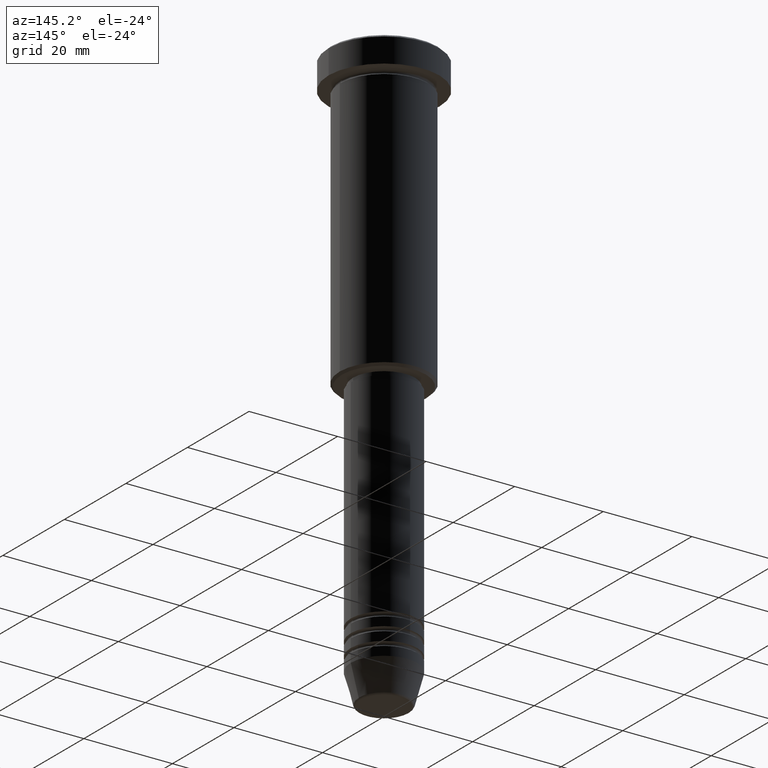
[diagram: clean part render]
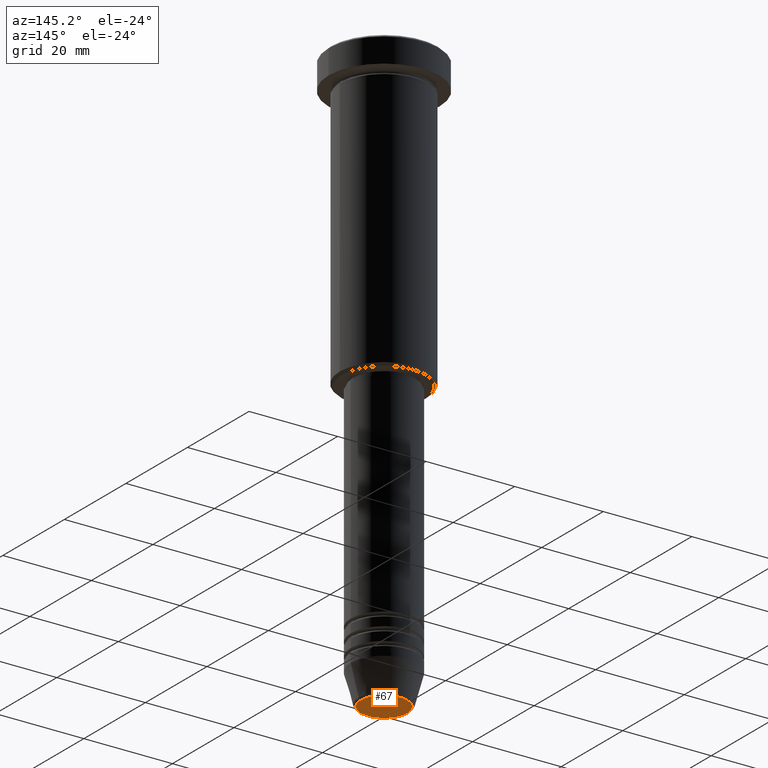
[diagram: same view with one face highlighted and labeled with its STEP entity id]
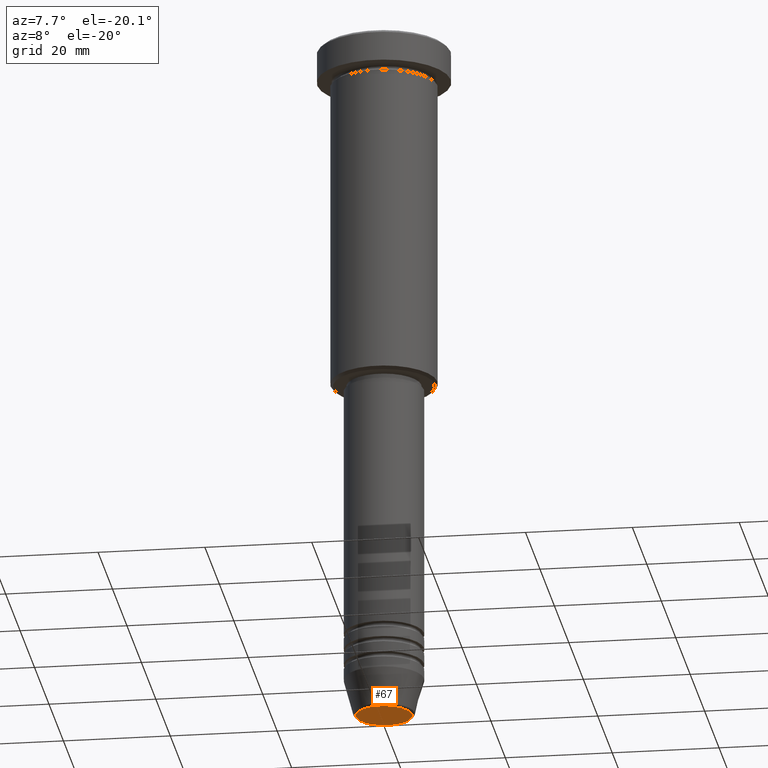
[diagram: same view with one face highlighted and labeled with its STEP entity id]
A machine part, auxiliary view. The second image highlights one B-rep face of the part: STEP entity #67.
A second angle (auxiliary view) of the same face is appended — the face is thin or edge-on in the first view.
In plain terms, the highlighted planar face has unit normal (0, -0, 1).
Its self-contained STEP definition (entity closure, byte-faithful):
#2 = VERTEX_POINT ( 'NONE', #1045 ) ;
#54 = EDGE_LOOP ( 'NONE', ( #235, #1142 ) ) ;
#67 = ADVANCED_FACE ( 'NONE', ( #177 ), #259, .F. ) ;
#143 = AXIS2_PLACEMENT_3D ( 'NONE', #1035, #777, #580 ) ;
#177 = FACE_OUTER_BOUND ( 'NONE', #54, .T. ) ;
#181 = EDGE_CURVE ( 'NONE', #899, #2, #963, .T. ) ;
#192 = CIRCLE ( 'NONE', #908, 5.240692158992654726 ) ;
#235 = ORIENTED_EDGE ( 'NONE', *, *, #181, .T. ) ;
#245 = DIRECTION ( 'NONE',  ( 1.000000000000000000, 0.000000000000000000, 0.000000000000000000 ) ) ;
#259 = PLANE ( 'NONE',  #849 ) ;
#431 = DIRECTION ( 'NONE',  ( 0.000000000000000000, 0.000000000000000000, -1.000000000000000000 ) ) ;
#461 = EDGE_CURVE ( 'NONE', #2, #899, #192, .T. ) ;
#517 = CARTESIAN_POINT ( 'NONE',  ( 5.240692158992654726, 0.000000000000000000, -131.0000000000000000 ) ) ;
#580 = DIRECTION ( 'NONE',  ( 1.000000000000000000, 0.000000000000000000, 0.000000000000000000 ) ) ;
#634 = CARTESIAN_POINT ( 'NONE',  ( 0.000000000000000000, 0.000000000000000000, -131.0000000000000000 ) ) ;
#639 = DIRECTION ( 'NONE',  ( 1.000000000000000000, 0.000000000000000000, 0.000000000000000000 ) ) ;
#727 = DIRECTION ( 'NONE',  ( 0.000000000000000000, -0.000000000000000000, 1.000000000000000000 ) ) ;
#777 = DIRECTION ( 'NONE',  ( 0.000000000000000000, 0.000000000000000000, -1.000000000000000000 ) ) ;
#849 = AXIS2_PLACEMENT_3D ( 'NONE', #634, #727, #639 ) ;
#899 = VERTEX_POINT ( 'NONE', #517 ) ;
#908 = AXIS2_PLACEMENT_3D ( 'NONE', #1076, #431, #245 ) ;
#963 = CIRCLE ( 'NONE', #143, 5.240692158992654726 ) ;
#1035 = CARTESIAN_POINT ( 'NONE',  ( 0.000000000000000000, 0.000000000000000000, -131.0000000000000000 ) ) ;
#1045 = CARTESIAN_POINT ( 'NONE',  ( -5.240692158992654726, 6.713726370671656487E-16, -131.0000000000000000 ) ) ;
#1076 = CARTESIAN_POINT ( 'NONE',  ( 0.000000000000000000, 0.000000000000000000, -131.0000000000000000 ) ) ;
#1142 = ORIENTED_EDGE ( 'NONE', *, *, #461, .T. ) ;